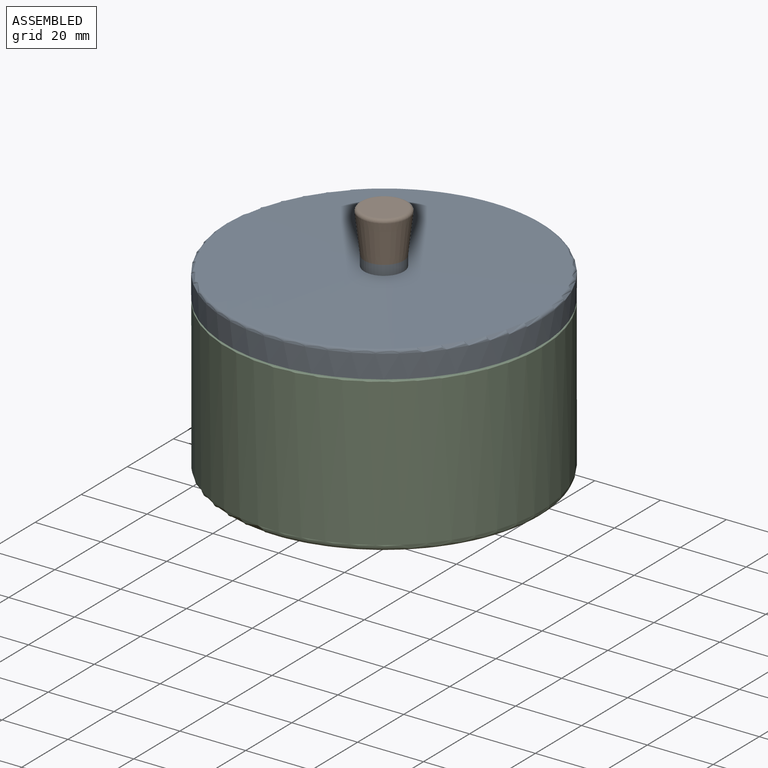
[diagram: assembled view]
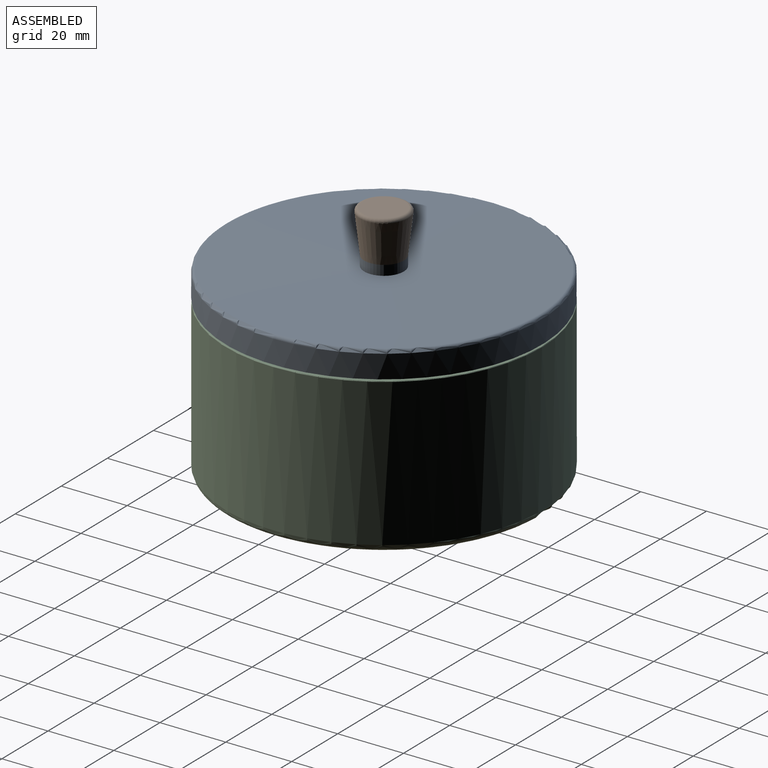
[diagram: assembled view, second angle]
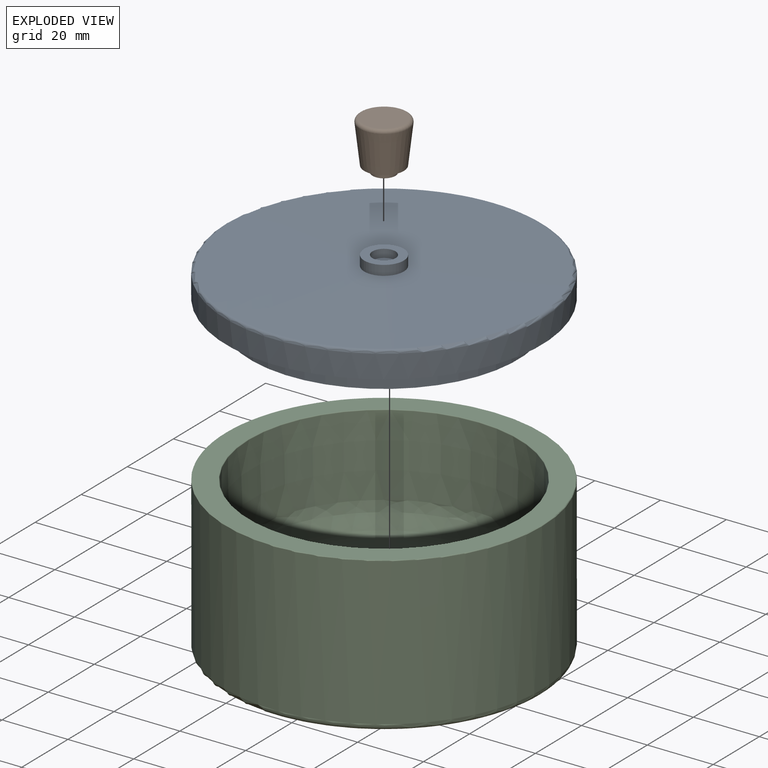
[diagram: exploded view]
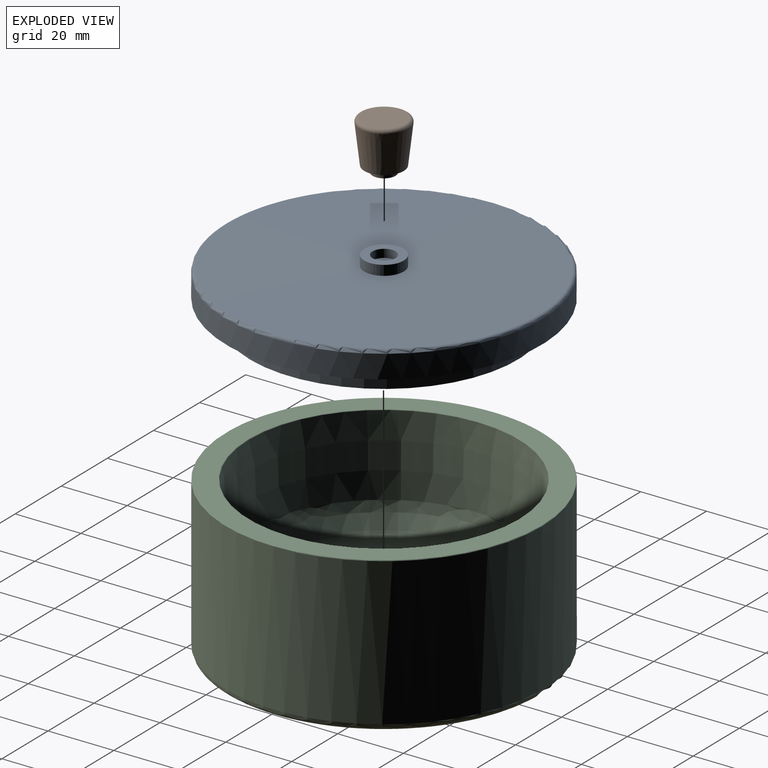
[diagram: exploded view, second angle]
ASSEMBLY  parts=3 mates=2
PART A: 11 faces, bbox 103.9x103.9x17.8 mm
  f0: plane 7x7mm, normal (0,0,1), area 38.5mm2, adj f9
  f1: revolved ~71.54x71.54mm, area 4190.5mm2, adj f2
  f2: plane 81.54x81.54mm, normal (0,0,-1), area 1202.3mm2, adj f1,f3
  f3: cone r=41mm half-angle=2.2deg, axis (0,0,1), area 1541.3mm2, adj f2,f4
  f4: plane 96x96mm, normal (0,0,-1), area 1957.2mm2, adj f3,f5
  f5: cylinder r=48mm len=96mm, axis (0,0,-1), area 2117.2mm2, adj f4,f10
  f6: cone r=48mm half-angle=88.8deg, axis (0,0,-1), area 6834.1mm2, adj f7,f10
  f7: cylinder r=6mm len=12mm, axis (0,0,-1), area 113.1mm2, adj f6,f8
  f8: plane 12x12mm, normal (0,0,1), area 74.6mm2, adj f7,f9
  f9: cylinder r=3.5mm len=7mm, axis (0,0,-1), area 55mm2, adj f0,f8
  f10: torus R=47mm, axis (0,0,1), area 464.2mm2, adj f5,f6
PART B: 6 faces, bbox 16x16x15 mm
  f0: torus R=6.38mm, axis (0,0,-1), area 74.6mm2, adj f1,f5
  f1: plane 12.76x12.76mm, normal (0,0,1), area 127.8mm2, adj f0
  f2: plane 7x7mm, normal (0,0,-1), area 38.5mm2, adj f3
  f3: cylinder r=3.5mm len=7mm, axis (0,0,-1), area 44mm2, adj f2,f4
  f4: plane 12x12mm, normal (0,0,-1), area 74.6mm2, adj f3,f5
  f5: cone r=6mm half-angle=6.6deg, axis (0,0,1), area 502.6mm2, adj f0,f4
PART C: 13 faces, bbox 103.9x103.9x47 mm
  f0: plane 66.37x66.37mm, normal (0,0,1), area 3460.1mm2, adj f11
  f1: plane 52x52mm, normal (0,0,-1), area 2123.7mm2, adj f2
  f2: cone r=26mm half-angle=36.8deg, axis (0,0,1), area 946.4mm2, adj f1,f3
  f3: plane 92x92mm, normal (0,0,-1), area 5090.3mm2, adj f2,f9
  f4: cylinder r=48mm len=96mm, axis (0,0,-1), area 13511.4mm2, adj f7,f9
  f5: plane 95.6x95.6mm, normal (0,0,1), area 1847.3mm2, adj f7,f8
  f6: cone r=41mm half-angle=2.2deg, axis (0,0,1), area 6164.1mm2, adj f8,f12
  f7: torus R=47.8mm, axis (0,0,1), area 94.6mm2, adj f4,f5
  f8: torus R=41.19mm, axis (0,0,1), area 79.1mm2, adj f5,f6
  f9: torus R=46mm, axis (0,0,-1), area 933.1mm2, adj f3,f4
  f10: cone r=40.01mm half-angle=20.4deg, axis (0,0,1), area 1097.3mm2, adj f11,f12
  f11: torus R=33.19mm, axis (0,0,1), area 1368.9mm2, adj f0,f10
  f12: bspline ~80.14x80.14mm, area 793mm2, adj f6,f10
PLACE A t=(-22.84,-15.92,-3.5)mm
PLACE B t=(-22.84,-15.92,-15.21)mm
PLACE C t=(-22.84,-15.92,15.41)mm fixed
MATE fastened B.f0 <-> A.f3  axis (0,0,-1) through (-22.84,-15.92,2.49)mm
MATE slider C.f2 <-> A.f3  axis (0,0,1) through (-22.84,-15.92,-9.89)mm
